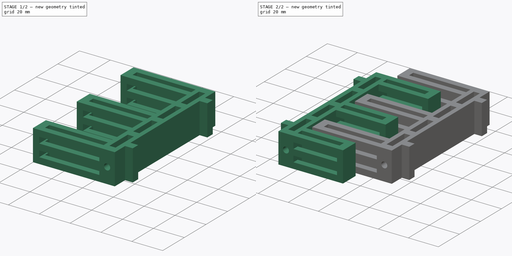
[diagram: build sequence overview — one tinted view per stage of 2, left to right]
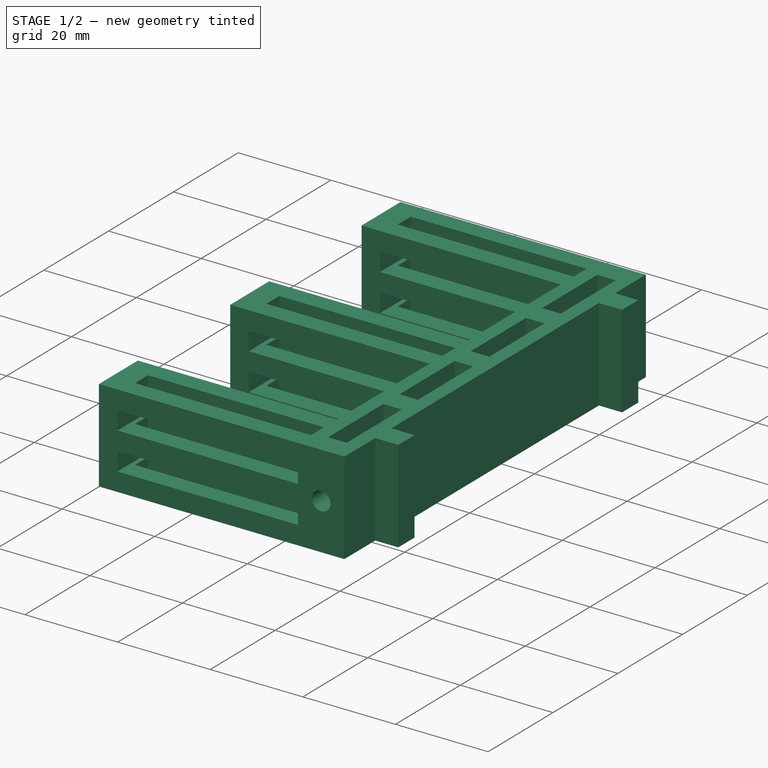
[diagram: stage 1 of 2 — iso view after this stage's code; geometry added in this stage tinted green]
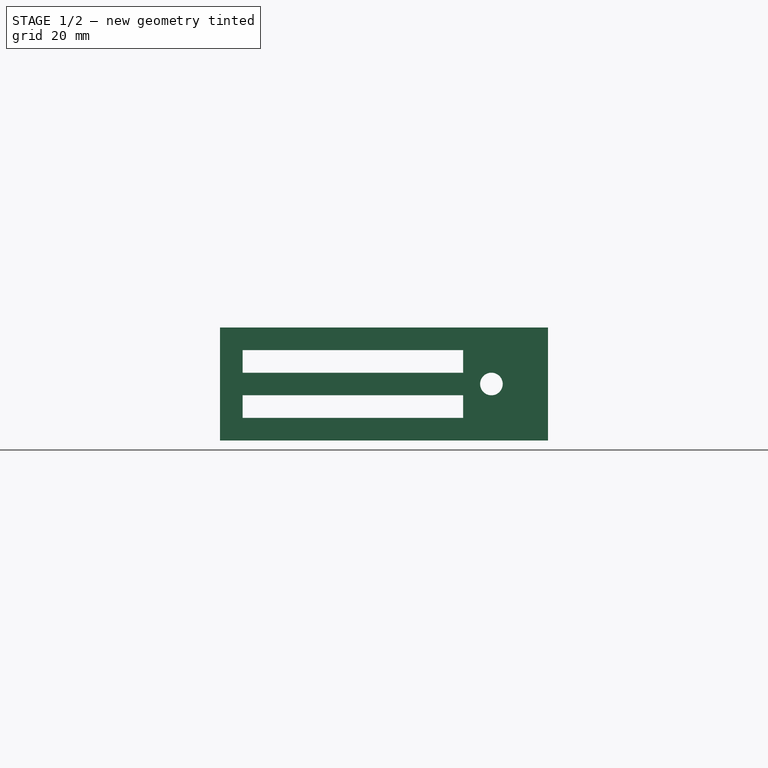
[diagram: stage 1 of 2 — front view after this stage's code; geometry added in this stage tinted green]
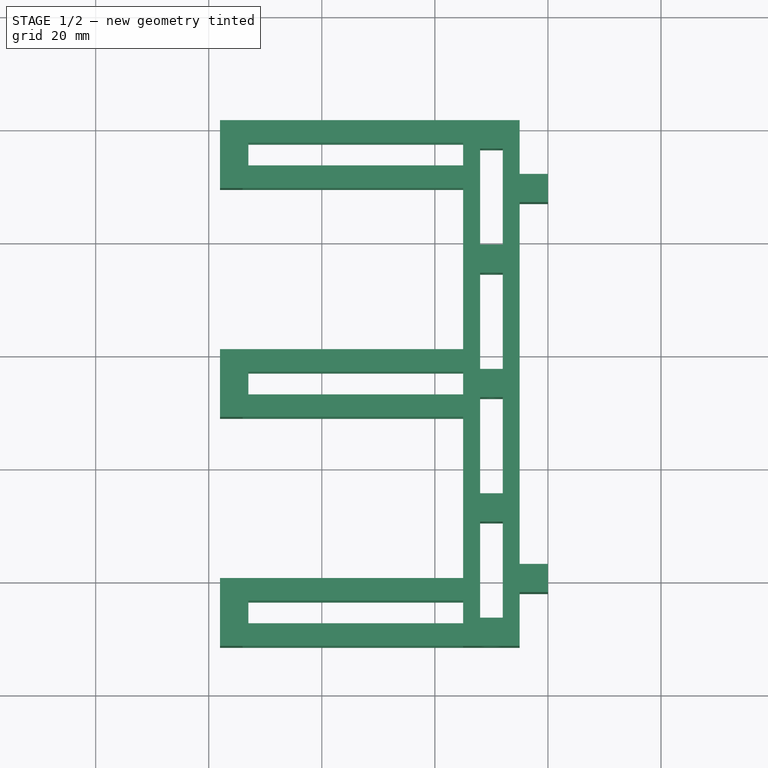
[diagram: stage 1 of 2 — top view after this stage's code; geometry added in this stage tinted green]
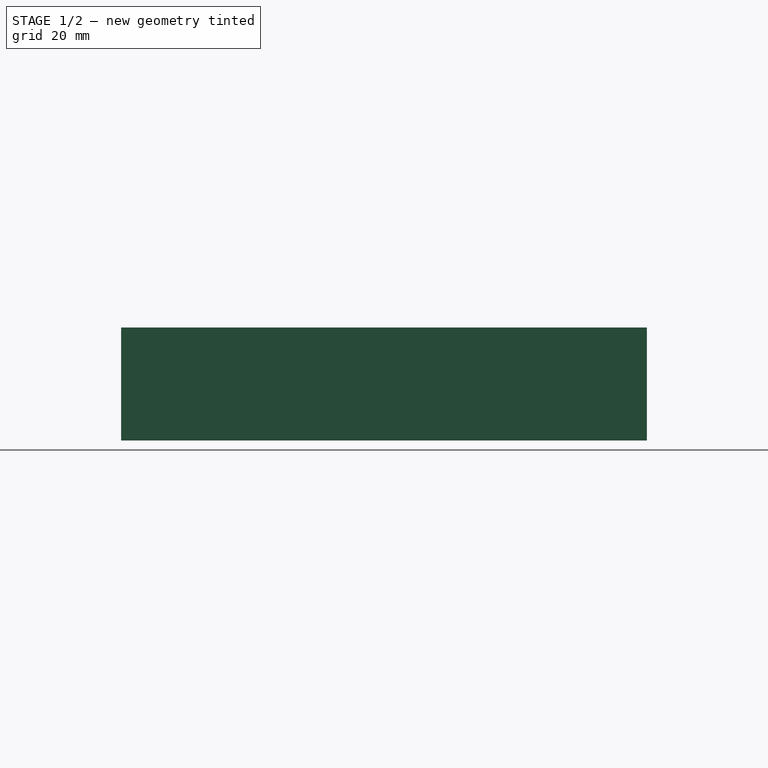
[diagram: stage 1 of 2 — right view after this stage's code; geometry added in this stage tinted green]
FCSTD DOCUMENT  (FreeCAD 0.15R4671 (Git))
Label: soporte_2.0
License: CreativeCommons Attribution-ShareAlike
LicenseURL: http://creativecommons.org/licenses/by-sa/4.0/
objects: Sketcher::SketchObject×4, PartDesign::Pad×2, PartDesign::Pocket×2, App::DocumentObjectGroup×2
note: 12 computed .brp shape members not serialized (recipe doc carries the construction recipe); baked Part::Feature solids carry a one-line shape summary decoded from their .brp

FEATURE [App::DocumentObjectGroup] Group  label="soporte_38mm"
  Group = -> [Pad,Pocket]
FEATURE [Sketcher::SketchObject] Sketch002  label="sketch_soporte001"
  Placement = pos=(45,15,0) rot=(0,0,1;3.14159rad)
  sketch-geometry (55):
    g0: LineSegment StartX=-10 StartY=-46.5 StartZ=0 EndX=43 EndY=-46.5 EndZ=0
    g1: LineSegment StartX=43 StartY=-46.5 StartZ=0 EndX=43 EndY=-34.5 EndZ=0
    g2: LineSegment StartX=43 StartY=-34.5 StartZ=0 EndX=0 EndY=-34.5 EndZ=0
    g3: LineSegment StartX=0 StartY=-34.5 StartZ=0 EndX=0 EndY=-6 EndZ=0
    g4: LineSegment StartX=0 StartY=-6 StartZ=0 EndX=43 EndY=-6 EndZ=0
    g5: LineSegment StartX=43 StartY=-6 StartZ=0 EndX=43 EndY=6 EndZ=0
    g6: LineSegment StartX=43 StartY=6 StartZ=0 EndX=0 EndY=6 EndZ=0
    g7: LineSegment StartX=0 StartY=6 StartZ=0 EndX=0 EndY=34.5 EndZ=0
    g8: LineSegment StartX=0 StartY=34.5 StartZ=0 EndX=43 EndY=34.5 EndZ=0
    g9: LineSegment StartX=43 StartY=34.5 StartZ=0 EndX=43 EndY=46.5 EndZ=0
    g10: LineSegment StartX=43 StartY=46.5 StartZ=0 EndX=-10 EndY=46.5 EndZ=0
    g11: LineSegment StartX=-10 StartY=-46.5 StartZ=0 EndX=-10 EndY=-37 EndZ=0
    g12: LineSegment StartX=-10 StartY=-37 StartZ=0 EndX=-15 EndY=-37 EndZ=0
    g13: LineSegment StartX=-15 StartY=-37 StartZ=0 EndX=-15 EndY=-32 EndZ=0
    g14: LineSegment StartX=-15 StartY=-32 StartZ=0 EndX=-10 EndY=-32 EndZ=0
    g15: LineSegment StartX=-10 StartY=-32 StartZ=0 EndX=-10 EndY=32 EndZ=0
    g16: LineSegment StartX=-10 StartY=32 StartZ=0 EndX=-15 EndY=32 EndZ=0
    g17: LineSegment StartX=-15 StartY=32 StartZ=0 EndX=-15 EndY=37 EndZ=0
    g18: LineSegment StartX=-15 StartY=37 StartZ=0 EndX=-10 EndY=37 EndZ=0
    g19: LineSegment StartX=-10 StartY=37 StartZ=0 EndX=-10 EndY=46.5 EndZ=0
    g20: LineSegment StartX=-7 StartY=41.5 StartZ=0 EndX=-3 EndY=41.5 EndZ=0
    g21: LineSegment StartX=-3 StartY=41.5 StartZ=0 EndX=-3 EndY=24.5 EndZ=0
    g22: LineSegment StartX=-3 StartY=24.5 StartZ=0 EndX=-7 EndY=24.5 EndZ=0
    g23: LineSegment StartX=-7 StartY=24.5 StartZ=0 EndX=-7 EndY=41.5 EndZ=0
    g24: LineSegment StartX=-7 StartY=-24.5 StartZ=0 EndX=-3 EndY=-24.5 EndZ=0
    g25: LineSegment StartX=-3 StartY=-24.5 StartZ=0 EndX=-3 EndY=-41.5 EndZ=0
    g26: LineSegment StartX=-3 StartY=-41.5 StartZ=0 EndX=-7 EndY=-41.5 EndZ=0
    g27: LineSegment StartX=-7 StartY=-41.5 StartZ=0 EndX=-7 EndY=-24.5 EndZ=0
    g28: LineSegment [constr] StartX=-7 StartY=-41.5 StartZ=0 EndX=-7 EndY=-46.5 EndZ=0
    g29: LineSegment StartX=-7 StartY=-2.5 StartZ=0 EndX=-3 EndY=-2.5 EndZ=0
    g30: LineSegment StartX=-3 StartY=-2.5 StartZ=0 EndX=-3 EndY=-19.5 EndZ=0
    g31: LineSegment StartX=-3 StartY=-19.5 StartZ=0 EndX=-7 EndY=-19.5 EndZ=0
    g32: LineSegment StartX=-7 StartY=-19.5 StartZ=0 EndX=-7 EndY=-2.5 EndZ=0
    g33: LineSegment StartX=-7 StartY=19.5 StartZ=0 EndX=-3 EndY=19.5 EndZ=0
    g34: LineSegment StartX=-3 StartY=19.5 StartZ=0 EndX=-3 EndY=2.5 EndZ=0
    g35: LineSegment StartX=-3 StartY=2.5 StartZ=0 EndX=-7 EndY=2.5 EndZ=0
    g36: LineSegment StartX=-7 StartY=2.5 StartZ=0 EndX=-7 EndY=19.5 EndZ=0
    g37: LineSegment [constr] StartX=-7 StartY=-19.5 StartZ=0 EndX=-7 EndY=-24.5 EndZ=0
    g38: LineSegment [constr] StartX=-7 StartY=2.5 StartZ=0 EndX=-7 EndY=-2.5 EndZ=0
    g39: LineSegment [constr] StartX=-7 StartY=-24.5 StartZ=0 EndX=-10 EndY=-24.5 EndZ=0
    g40: LineSegment [constr] StartX=-3 StartY=-24.5 StartZ=0 EndX=0 EndY=-24.5 EndZ=0
    g41: LineSegment StartX=38 StartY=-38.5 StartZ=0 EndX=0 EndY=-38.5 EndZ=0
    g42: LineSegment StartX=0 StartY=-38.5 StartZ=0 EndX=0 EndY=-42.5 EndZ=0
    g43: LineSegment StartX=0 StartY=-42.5 StartZ=0 EndX=38 EndY=-42.5 EndZ=0
    g44: LineSegment StartX=38 StartY=-42.5 StartZ=0 EndX=38 EndY=-38.5 EndZ=0
    g45: LineSegment [constr] StartX=38 StartY=-38.5 StartZ=0 EndX=38 EndY=-34.5 EndZ=0
    g46: LineSegment StartX=0 StartY=2 StartZ=0 EndX=38 EndY=2 EndZ=0
    g47: LineSegment StartX=38 StartY=2 StartZ=0 EndX=38 EndY=-2 EndZ=0
    g48: LineSegment StartX=38 StartY=-2 StartZ=0 EndX=0 EndY=-2 EndZ=0
    g49: LineSegment StartX=0 StartY=-2 StartZ=0 EndX=0 EndY=2 EndZ=0
    g50: LineSegment StartX=0 StartY=42.5 StartZ=0 EndX=38 EndY=42.5 EndZ=0
    g51: LineSegment StartX=38 StartY=42.5 StartZ=0 EndX=38 EndY=38.5 EndZ=0
    g52: LineSegment StartX=38 StartY=38.5 StartZ=0 EndX=0 EndY=38.5 EndZ=0
    g53: LineSegment StartX=0 StartY=38.5 StartZ=0 EndX=0 EndY=42.5 EndZ=0
    g54: LineSegment [constr] StartX=38 StartY=-42.5 StartZ=0 EndX=38 EndY=-46.5 EndZ=0
  constraints (167):
    c: Horizontal(g0)
    c: Coincident(g0,g1)
    c: Vertical(g1)
    c: Coincident(g1,g2)
    c: Horizontal(g2)
    c: Coincident(g2,g3)
    c: PointOnObject(g3,g-2)
    c: Vertical(g3)
    c: Coincident(g3,g4)
    c: Horizontal(g4)
    c: Coincident(g4,g5)
    c: Vertical(g5)
    c: Coincident(g5,g6)
    c: Horizontal(g6)
    c: Coincident(g6,g7)
    c: Vertical(g7)
    c: Coincident(g7,g8)
    c: Horizontal(g8)
    c: Coincident(g8,g9)
    c: Vertical(g9)
    c: Coincident(g9,g10)
    c: Horizontal(g10)
    c: Equal(g4,g6)
    c: Symmetric(g6,g3,g-1)
    c: Symmetric(g7,g2,g-1)
    c: Equal(g8,g6)
    c: Equal(g6,g4)
    c: Equal(g4,g2)
    c: DistanceX(g0) = 53
    c: Equal(g1,g9)
    c: Equal(g10,g0)
    c: DistanceY(g1) = 12
    c: DistanceX(g2,g0) = -10
    c: DistanceY(g10,g0) = -93
    c: Coincident(g0,g11)
    c: Vertical(g11)
    c: Coincident(g11,g12)
    c: Horizontal(g12)
    c: Coincident(g12,g13)
    c: Vertical(g13)
    c: Coincident(g13,g14)
    c: Horizontal(g14)
    c: Coincident(g14,g15)
    c: Vertical(g15)
    c: Coincident(g15,g16)
    c: Horizontal(g16)
    c: Coincident(g16,g17)
    c: Vertical(g17)
    c: Coincident(g17,g18)
    c: Horizontal(g18)
    c: Coincident(g18,g19)
    c: Coincident(g19,g10)
    c: Vertical(g19)
    c: Equal(g18,g16)
    c: Equal(g16,g14)
    c: Equal(g14,g12)
    c: Equal(g13,g17)
    c: Equal(g19,g11)
    c: DistanceY(g13) = 5
    c: DistanceX(g14) = 5
    c: DistanceY(g15) = 64
    c: Coincident(g20,g21)
    c: Coincident(g21,g22)
    c: Coincident(g22,g23)
    c: Coincident(g23,g20)
    c: Horizontal(g20)
    c: Horizontal(g22)
    c: Vertical(g21)
    c: Vertical(g23)
    c: Coincident(g24,g25)
    c: Coincident(g25,g26)
    c: Coincident(g26,g27)
    c: Coincident(g27,g24)
    c: Horizontal(g24)
    c: Horizontal(g26)
    c: Vertical(g25)
    c: Vertical(g27)
    c: Symmetric(g24,g22,g-1)
    c: Symmetric(g25,g20,g-1)
    c: PointOnObject(g28,g0)
    c: Vertical(g28)
    c: Coincident(g29,g30)
    c: Coincident(g30,g31)
    c: Coincident(g31,g32)
    c: Coincident(g32,g29)
    c: Horizontal(g29)
    c: Horizontal(g31)
    c: Vertical(g32)
    c: Coincident(g33,g34)
    c: Coincident(g34,g35)
    c: Coincident(g35,g36)
    c: Coincident(g36,g33)
    c: Horizontal(g33)
    c: Horizontal(g35)
    c: Vertical(g36)
    c: Symmetric(g35,g29,g-1)
    c: Symmetric(g30,g33,g-1)
    c: Coincident(g28,g26)
    c: Coincident(g37,g31)
    c: Coincident(g37,g24)
    c: Vertical(g37)
    c: Coincident(g38,g35)
    c: Coincident(g38,g29)
    c: Equal(g28,g38)
    c: Equal(g38,g37)
    c: Equal(g25,g30)
    c: DistanceX(g26) = -4
    c: Equal(g26,g24)
    c: Equal(g24,g31)
    c: Equal(g31,g29)
    c: Equal(g29,g35)
    c: Equal(g35,g33)
    c: Equal(g33,g22)
    c: Equal(g22,g20)
    c: Coincident(g39,g24)
    c: PointOnObject(g39,g15)
    c: Horizontal(g39)
    c: Coincident(g40,g24)
    c: PointOnObject(g40,g3)
    c: Horizontal(g40)
    c: Equal(g39,g40)
    c: Equal(g5,g1)
    c: Coincident(g41,g42)
    c: Coincident(g42,g43)
    c: Coincident(g43,g44)
    c: Coincident(g44,g41)
    c: Horizontal(g41)
    c: Horizontal(g43)
    c: Vertical(g42)
    c: Vertical(g44)
    c: PointOnObject(g42,g-2)
    c: DistanceY(g44) = 4
    c: DistanceX(g43,g0) = 5
    c: Coincident(g45,g41)
    c: PointOnObject(g45,g2)
    c: Vertical(g45)
    c: Coincident(g46,g47)
    c: Coincident(g47,g48)
    c: Coincident(g48,g49)
    c: Coincident(g49,g46)
    c: Horizontal(g46)
    c: Horizontal(g48)
    c: Vertical(g47)
    c: Vertical(g49)
    c: PointOnObject(g46,g-2)
    c: Symmetric(g46,g48,g-1)
    c: Equal(g47,g44)
    c: Equal(g41,g48)
    c: Coincident(g50,g51)
    c: Coincident(g51,g52)
    c: Coincident(g52,g53)
    c: Coincident(g53,g50)
    c: Horizontal(g50)
    c: Horizontal(g52)
    c: Vertical(g51)
    c: Vertical(g53)
    c: PointOnObject(g50,g-2)
    c: Symmetric(g51,g41,g-1)
    c: Symmetric(g50,g43,g-1)
    c: DistanceY(g24,g30) = 5
    c: Coincident(g40,g25)
    c: Coincident(g32,g38)
    c: Coincident(g44,g45)
    c: Coincident(g54,g43)
    c: PointOnObject(g54,g0)
    c: Vertical(g54)
    c: Equal(g45,g54)
FEATURE [PartDesign::Pad] Pad001  label="soporte001"
  Length = 20
  Length2 = 100
  Placement = pos=(45,15,0) rot=(0,0,1;3.14159rad)
  Sketch = -> Sketch002
  Type = 0
FEATURE [Sketcher::SketchObject] Sketch003  label="sketch_aligerado001"
  ExternalGeometry = -> [Pad001]
  Placement = pos=(45,61.5,0) rot=(0,0.707107,0.707107;3.14159rad)
  Support = -> Pad001 [Face1]
  sketch-geometry (12):
    g0: LineSegment [constr] StartX=-10 StartY=10 StartZ=0 EndX=43 EndY=10 EndZ=0
    g1: LineSegment [constr] StartX=43 StartY=10 StartZ=0 EndX=43 EndY=20 EndZ=0
    g2: LineSegment [constr] StartX=43 StartY=10 StartZ=0 EndX=43 EndY=0 EndZ=0
    g3: LineSegment StartX=0 StartY=16 StartZ=0 EndX=39 EndY=16 EndZ=0
    g4: LineSegment StartX=39 StartY=16 StartZ=0 EndX=39 EndY=12 EndZ=0
    g5: LineSegment StartX=39 StartY=12 StartZ=0 EndX=0 EndY=12 EndZ=0
    g6: LineSegment StartX=0 StartY=12 StartZ=0 EndX=0 EndY=16 EndZ=0
    g7: LineSegment StartX=0 StartY=8 StartZ=0 EndX=39 EndY=8 EndZ=0
    g8: LineSegment StartX=39 StartY=8 StartZ=0 EndX=39 EndY=4 EndZ=0
    g9: LineSegment StartX=39 StartY=4 StartZ=0 EndX=0 EndY=4 EndZ=0
    g10: LineSegment StartX=0 StartY=4 StartZ=0 EndX=0 EndY=8 EndZ=0
    g11: Circle CenterX=-5 CenterY=10 CenterZ=0 NormalX=0 NormalY=0 NormalZ=1 Radius=2
  constraints (33):
    c: PointOnObject(g0,g-4)
    c: Horizontal(g0)
    c: Coincident(g1,g0)
    c: Coincident(g1,g-6)
    c: Vertical(g1)
    c: Coincident(g2,g0)
    c: Coincident(g2,g-7)
    c: Equal(g1,g2)
    c: Coincident(g3,g4)
    c: Coincident(g4,g5)
    c: Coincident(g5,g6)
    c: Coincident(g6,g3)
    c: Horizontal(g3)
    c: Horizontal(g5)
    c: Vertical(g4)
    c: Vertical(g6)
    c: Coincident(g7,g8)
    c: Coincident(g8,g9)
    c: Coincident(g9,g10)
    c: Coincident(g10,g7)
    c: Horizontal(g7)
    c: Horizontal(g9)
    c: Vertical(g8)
    c: Vertical(g10)
    c: Symmetric(g7,g5,g0)
    c: Symmetric(g3,g8,g0)
    c: DistanceX(g8,g2) = 4
    c: DistanceY(g4,g7) = -4
    c: DistanceY(g8,g2) = -4
    c: PointOnObject(g11,g0)
    c: Radius(g11) = 2
    c: DistanceX(g11,g0) = -5
    c: PointOnObject(g9,g-3)
FEATURE [PartDesign::Pocket] Pocket001  label="soporte_aligerado001"
  Length = 5
  Placement = pos=(45,15,0) rot=(0,0,1;3.14159rad)
  Sketch = -> Sketch003
  Type = 1
FEATURE [App::DocumentObjectGroup] Group001  label="soporte_40mm"
  Group = -> [Pad001,Pocket001]
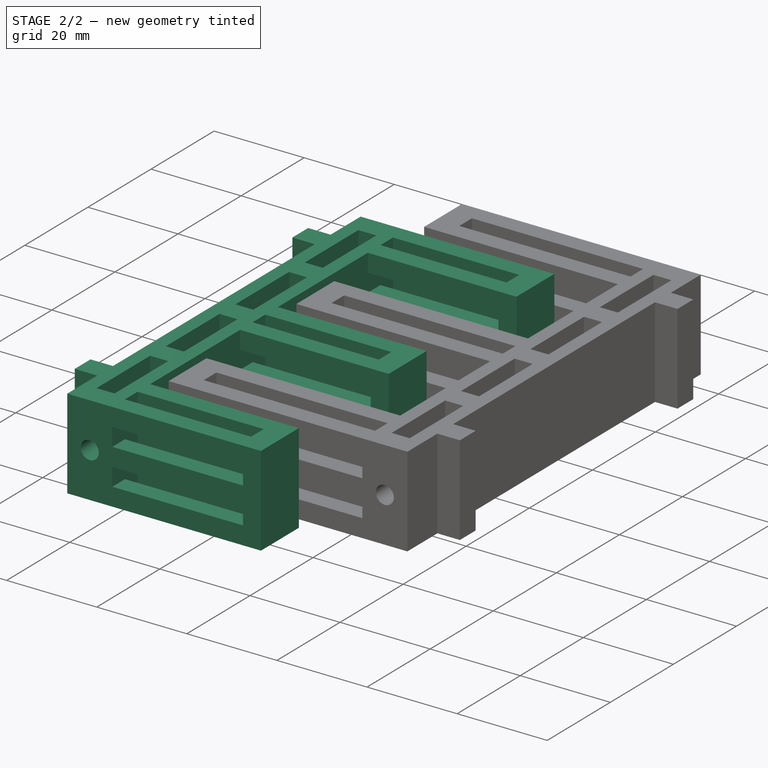
[diagram: stage 2 of 2 — iso view after this stage's code; geometry added in this stage tinted green]
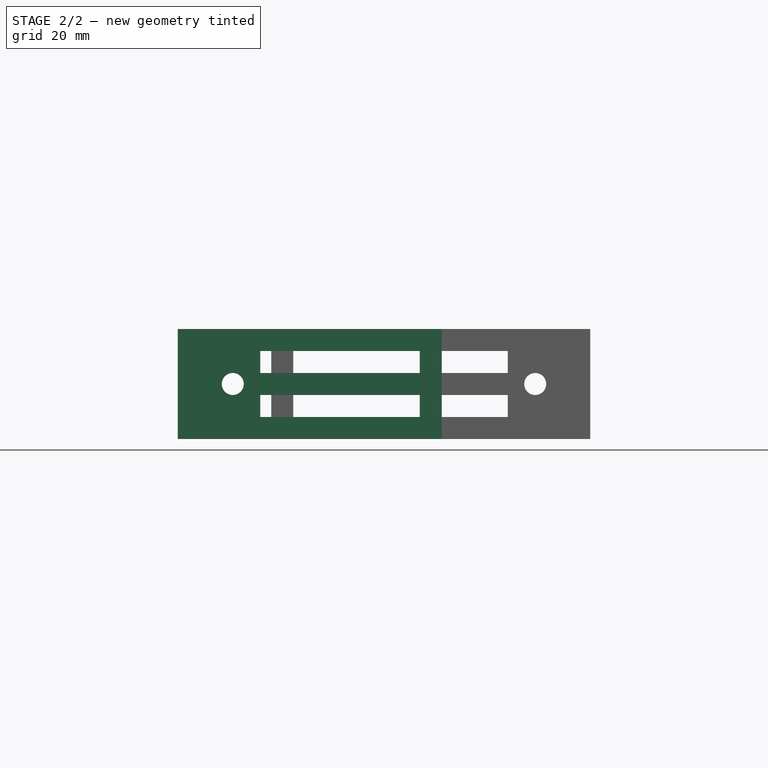
[diagram: stage 2 of 2 — front view after this stage's code; geometry added in this stage tinted green]
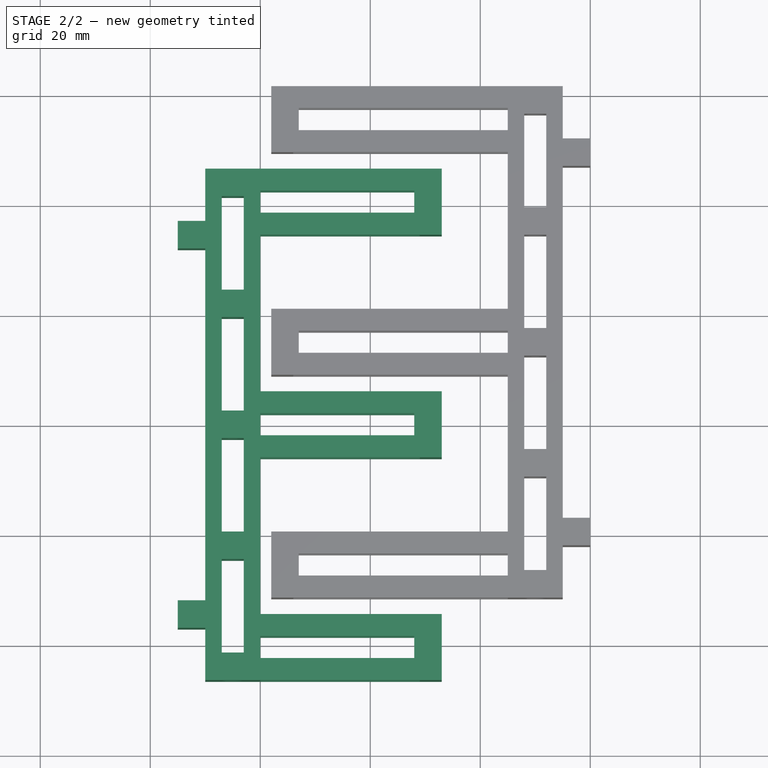
[diagram: stage 2 of 2 — top view after this stage's code; geometry added in this stage tinted green]
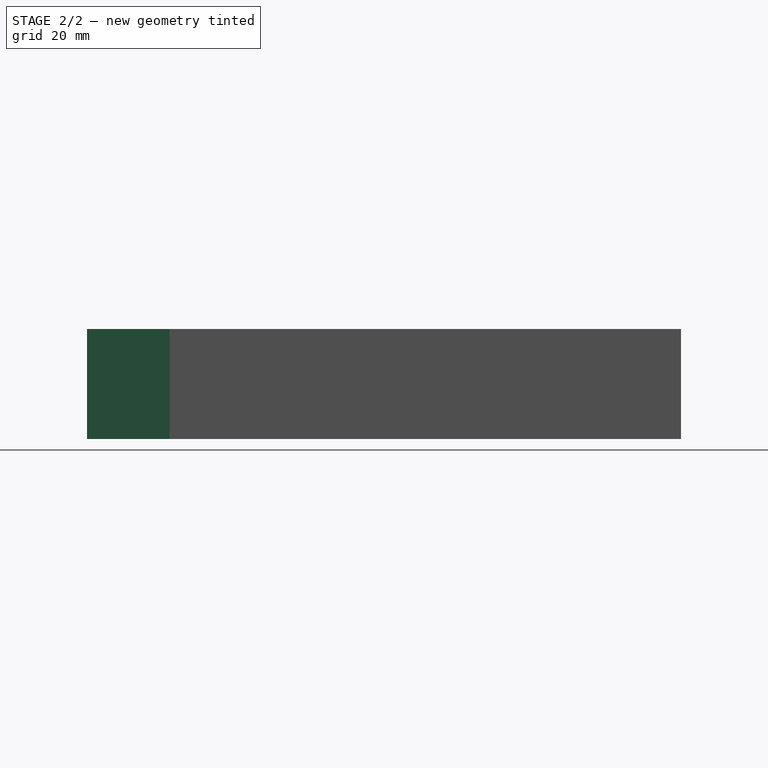
[diagram: stage 2 of 2 — right view after this stage's code; geometry added in this stage tinted green]
FEATURE [Sketcher::SketchObject] Sketch  label="sketch_soporte"
  sketch-geometry (55):
    g0: LineSegment StartX=-10 StartY=-46.5 StartZ=0 EndX=33 EndY=-46.5 EndZ=0
    g1: LineSegment StartX=33 StartY=-46.5 StartZ=0 EndX=33 EndY=-34.5 EndZ=0
    g2: LineSegment StartX=33 StartY=-34.5 StartZ=0 EndX=0 EndY=-34.5 EndZ=0
    g3: LineSegment StartX=0 StartY=-34.5 StartZ=0 EndX=0 EndY=-6 EndZ=0
    g4: LineSegment StartX=0 StartY=-6 StartZ=0 EndX=33 EndY=-6 EndZ=0
    g5: LineSegment StartX=33 StartY=-6 StartZ=0 EndX=33 EndY=6 EndZ=0
    g6: LineSegment StartX=33 StartY=6 StartZ=0 EndX=0 EndY=6 EndZ=0
    g7: LineSegment StartX=0 StartY=6 StartZ=0 EndX=0 EndY=34.5 EndZ=0
    g8: LineSegment StartX=0 StartY=34.5 StartZ=0 EndX=33 EndY=34.5 EndZ=0
    g9: LineSegment StartX=33 StartY=34.5 StartZ=0 EndX=33 EndY=46.5 EndZ=0
    g10: LineSegment StartX=33 StartY=46.5 StartZ=0 EndX=-10 EndY=46.5 EndZ=0
    g11: LineSegment StartX=-10 StartY=-46.5 StartZ=0 EndX=-10 EndY=-37 EndZ=0
    g12: LineSegment StartX=-10 StartY=-37 StartZ=0 EndX=-15 EndY=-37 EndZ=0
    g13: LineSegment StartX=-15 StartY=-37 StartZ=0 EndX=-15 EndY=-32 EndZ=0
    g14: LineSegment StartX=-15 StartY=-32 StartZ=0 EndX=-10 EndY=-32 EndZ=0
    g15: LineSegment StartX=-10 StartY=-32 StartZ=0 EndX=-10 EndY=32 EndZ=0
    g16: LineSegment StartX=-10 StartY=32 StartZ=0 EndX=-15 EndY=32 EndZ=0
    g17: LineSegment StartX=-15 StartY=32 StartZ=0 EndX=-15 EndY=37 EndZ=0
    g18: LineSegment StartX=-15 StartY=37 StartZ=0 EndX=-10 EndY=37 EndZ=0
    g19: LineSegment StartX=-10 StartY=37 StartZ=0 EndX=-10 EndY=46.5 EndZ=0
    g20: LineSegment StartX=-7 StartY=41.5 StartZ=0 EndX=-3 EndY=41.5 EndZ=0
    g21: LineSegment StartX=-3 StartY=41.5 StartZ=0 EndX=-3 EndY=24.5 EndZ=0
    g22: LineSegment StartX=-3 StartY=24.5 StartZ=0 EndX=-7 EndY=24.5 EndZ=0
    g23: LineSegment StartX=-7 StartY=24.5 StartZ=0 EndX=-7 EndY=41.5 EndZ=0
    g24: LineSegment StartX=-7 StartY=-24.5 StartZ=0 EndX=-3 EndY=-24.5 EndZ=0
    g25: LineSegment StartX=-3 StartY=-24.5 StartZ=0 EndX=-3 EndY=-41.5 EndZ=0
    g26: LineSegment StartX=-3 StartY=-41.5 StartZ=0 EndX=-7 EndY=-41.5 EndZ=0
    g27: LineSegment StartX=-7 StartY=-41.5 StartZ=0 EndX=-7 EndY=-24.5 EndZ=0
    g28: LineSegment [constr] StartX=-7 StartY=-41.5 StartZ=0 EndX=-7 EndY=-46.5 EndZ=0
    g29: LineSegment StartX=-7 StartY=-2.5 StartZ=0 EndX=-3 EndY=-2.5 EndZ=0
    g30: LineSegment StartX=-3 StartY=-2.5 StartZ=0 EndX=-3 EndY=-19.5 EndZ=0
    g31: LineSegment StartX=-3 StartY=-19.5 StartZ=0 EndX=-7 EndY=-19.5 EndZ=0
    g32: LineSegment StartX=-7 StartY=-19.5 StartZ=0 EndX=-7 EndY=-2.5 EndZ=0
    g33: LineSegment StartX=-7 StartY=19.5 StartZ=0 EndX=-3 EndY=19.5 EndZ=0
    g34: LineSegment StartX=-3 StartY=19.5 StartZ=0 EndX=-3 EndY=2.5 EndZ=0
    g35: LineSegment StartX=-3 StartY=2.5 StartZ=0 EndX=-7 EndY=2.5 EndZ=0
    g36: LineSegment StartX=-7 StartY=2.5 StartZ=0 EndX=-7 EndY=19.5 EndZ=0
    g37: LineSegment [constr] StartX=-7 StartY=-19.5 StartZ=0 EndX=-7 EndY=-24.5 EndZ=0
    g38: LineSegment [constr] StartX=-7 StartY=2.5 StartZ=0 EndX=-7 EndY=-2.5 EndZ=0
    g39: LineSegment [constr] StartX=-7 StartY=-24.5 StartZ=0 EndX=-10 EndY=-24.5 EndZ=0
    g40: LineSegment [constr] StartX=-3 StartY=-24.5 StartZ=0 EndX=0 EndY=-24.5 EndZ=0
    g41: LineSegment StartX=28 StartY=-38.5 StartZ=0 EndX=0 EndY=-38.5 EndZ=0
    g42: LineSegment StartX=0 StartY=-38.5 StartZ=0 EndX=0 EndY=-42.5 EndZ=0
    g43: LineSegment StartX=0 StartY=-42.5 StartZ=0 EndX=28 EndY=-42.5 EndZ=0
    g44: LineSegment StartX=28 StartY=-42.5 StartZ=0 EndX=28 EndY=-38.5 EndZ=0
    g45: LineSegment [constr] StartX=28 StartY=-38.5 StartZ=0 EndX=28 EndY=-34.5 EndZ=0
    g46: LineSegment StartX=0 StartY=2 StartZ=0 EndX=28 EndY=2 EndZ=0
    g47: LineSegment StartX=28 StartY=2 StartZ=0 EndX=28 EndY=-2 EndZ=0
    g48: LineSegment StartX=28 StartY=-2 StartZ=0 EndX=0 EndY=-2 EndZ=0
    g49: LineSegment StartX=0 StartY=-2 StartZ=0 EndX=0 EndY=2 EndZ=0
    g50: LineSegment StartX=0 StartY=42.5 StartZ=0 EndX=28 EndY=42.5 EndZ=0
    g51: LineSegment StartX=28 StartY=42.5 StartZ=0 EndX=28 EndY=38.5 EndZ=0
    g52: LineSegment StartX=28 StartY=38.5 StartZ=0 EndX=0 EndY=38.5 EndZ=0
    g53: LineSegment StartX=0 StartY=38.5 StartZ=0 EndX=0 EndY=42.5 EndZ=0
    g54: LineSegment [constr] StartX=28 StartY=-42.5 StartZ=0 EndX=28 EndY=-46.5 EndZ=0
  constraints (167):
    c: Horizontal(g0)
    c: Coincident(g0,g1)
    c: Vertical(g1)
    c: Coincident(g1,g2)
    c: Horizontal(g2)
    c: Coincident(g2,g3)
    c: PointOnObject(g3,g-2)
    c: Vertical(g3)
    c: Coincident(g3,g4)
    c: Horizontal(g4)
    c: Coincident(g4,g5)
    c: Vertical(g5)
    c: Coincident(g5,g6)
    c: Horizontal(g6)
    c: Coincident(g6,g7)
    c: Vertical(g7)
    c: Coincident(g7,g8)
    c: Horizontal(g8)
    c: Coincident(g8,g9)
    c: Vertical(g9)
    c: Coincident(g9,g10)
    c: Horizontal(g10)
    c: Equal(g4,g6)
    c: Symmetric(g6,g3,g-1)
    c: Symmetric(g7,g2,g-1)
    c: Equal(g8,g6)
    c: Equal(g6,g4)
    c: Equal(g4,g2)
    c: DistanceX(g0) = 43
    c: Equal(g1,g9)
    c: Equal(g10,g0)
    c: DistanceY(g1) = 12
    c: DistanceX(g2,g0) = -10
    c: DistanceY(g10,g0) = -93
    c: Coincident(g0,g11)
    c: Vertical(g11)
    c: Coincident(g11,g12)
    c: Horizontal(g12)
    c: Coincident(g12,g13)
    c: Vertical(g13)
    c: Coincident(g13,g14)
    c: Horizontal(g14)
    c: Coincident(g14,g15)
    c: Vertical(g15)
    c: Coincident(g15,g16)
    c: Horizontal(g16)
    c: Coincident(g16,g17)
    c: Vertical(g17)
    c: Coincident(g17,g18)
    c: Horizontal(g18)
    c: Coincident(g18,g19)
    c: Coincident(g19,g10)
    c: Vertical(g19)
    c: Equal(g18,g16)
    c: Equal(g16,g14)
    c: Equal(g14,g12)
    c: Equal(g13,g17)
    c: Equal(g19,g11)
    c: DistanceY(g13) = 5
    c: DistanceX(g14) = 5
    c: DistanceY(g15) = 64
    c: Coincident(g20,g21)
    c: Coincident(g21,g22)
    c: Coincident(g22,g23)
    c: Coincident(g23,g20)
    c: Horizontal(g20)
    c: Horizontal(g22)
    c: Vertical(g21)
    c: Vertical(g23)
    c: Coincident(g24,g25)
    c: Coincident(g25,g26)
    c: Coincident(g26,g27)
    c: Coincident(g27,g24)
    c: Horizontal(g24)
    c: Horizontal(g26)
    c: Vertical(g25)
    c: Vertical(g27)
    c: Symmetric(g24,g22,g-1)
    c: Symmetric(g25,g20,g-1)
    c: PointOnObject(g28,g0)
    c: Vertical(g28)
    c: Coincident(g29,g30)
    c: Coincident(g30,g31)
    c: Coincident(g31,g32)
    c: Coincident(g32,g29)
    c: Horizontal(g29)
    c: Horizontal(g31)
    c: Vertical(g32)
    c: Coincident(g33,g34)
    c: Coincident(g34,g35)
    c: Coincident(g35,g36)
    c: Coincident(g36,g33)
    c: Horizontal(g33)
    c: Horizontal(g35)
    c: Vertical(g36)
    c: Symmetric(g35,g29,g-1)
    c: Symmetric(g30,g33,g-1)
    c: Coincident(g28,g26)
    c: Coincident(g37,g31)
    c: Coincident(g37,g24)
    c: Vertical(g37)
    c: Coincident(g38,g35)
    c: Coincident(g38,g29)
    c: Equal(g28,g38)
    c: Equal(g38,g37)
    c: Equal(g25,g30)
    c: DistanceX(g26) = -4
    c: Equal(g26,g24)
    c: Equal(g24,g31)
    c: Equal(g31,g29)
    c: Equal(g29,g35)
    c: Equal(g35,g33)
    c: Equal(g33,g22)
    c: Equal(g22,g20)
    c: Coincident(g39,g24)
    c: PointOnObject(g39,g15)
    c: Horizontal(g39)
    c: Coincident(g40,g24)
    c: PointOnObject(g40,g3)
    c: Horizontal(g40)
    c: Equal(g39,g40)
    c: Equal(g5,g1)
    c: Coincident(g41,g42)
    c: Coincident(g42,g43)
    c: Coincident(g43,g44)
    c: Coincident(g44,g41)
    c: Horizontal(g41)
    c: Horizontal(g43)
    c: Vertical(g42)
    c: Vertical(g44)
    c: PointOnObject(g42,g-2)
    c: DistanceY(g44) = 4
    c: DistanceX(g43,g0) = 5
    c: Coincident(g45,g41)
    c: PointOnObject(g45,g2)
    c: Vertical(g45)
    c: Coincident(g46,g47)
    c: Coincident(g47,g48)
    c: Coincident(g48,g49)
    c: Coincident(g49,g46)
    c: Horizontal(g46)
    c: Horizontal(g48)
    c: Vertical(g47)
    c: Vertical(g49)
    c: PointOnObject(g46,g-2)
    c: Symmetric(g46,g48,g-1)
    c: Equal(g47,g44)
    c: Equal(g41,g48)
    c: Coincident(g50,g51)
    c: Coincident(g51,g52)
    c: Coincident(g52,g53)
    c: Coincident(g53,g50)
    c: Horizontal(g50)
    c: Horizontal(g52)
    c: Vertical(g51)
    c: Vertical(g53)
    c: PointOnObject(g50,g-2)
    c: Symmetric(g51,g41,g-1)
    c: Symmetric(g50,g43,g-1)
    c: DistanceY(g24,g30) = 5
    c: Coincident(g40,g25)
    c: Coincident(g32,g38)
    c: Coincident(g44,g45)
    c: Coincident(g54,g43)
    c: PointOnObject(g54,g0)
    c: Vertical(g54)
    c: Equal(g45,g54)
FEATURE [PartDesign::Pad] Pad  label="soporte"
  Length = 20
  Length2 = 100
  Sketch = -> Sketch
  Type = 0
FEATURE [Sketcher::SketchObject] Sketch001  label="sketch_aligerado"
  ExternalGeometry = -> [Pad]
  Placement = pos=(0,-46.5,0) rot=(1,0,0;1.5708rad)
  Support = -> Pad [Face1]
  sketch-geometry (12):
    g0: LineSegment [constr] StartX=-10 StartY=10 StartZ=0 EndX=33 EndY=10 EndZ=0
    g1: LineSegment [constr] StartX=33 StartY=10 StartZ=0 EndX=33 EndY=20 EndZ=0
    g2: LineSegment [constr] StartX=33 StartY=10 StartZ=0 EndX=33 EndY=0 EndZ=0
    g3: LineSegment StartX=0 StartY=16 StartZ=0 EndX=29 EndY=16 EndZ=0
    g4: LineSegment StartX=29 StartY=16 StartZ=0 EndX=29 EndY=12 EndZ=0
    g5: LineSegment StartX=29 StartY=12 StartZ=0 EndX=0 EndY=12 EndZ=0
    g6: LineSegment StartX=0 StartY=12 StartZ=0 EndX=0 EndY=16 EndZ=0
    g7: LineSegment StartX=0 StartY=8 StartZ=0 EndX=29 EndY=8 EndZ=0
    g8: LineSegment StartX=29 StartY=8 StartZ=0 EndX=29 EndY=4 EndZ=0
    g9: LineSegment StartX=29 StartY=4 StartZ=0 EndX=0 EndY=4 EndZ=0
    g10: LineSegment StartX=0 StartY=4 StartZ=0 EndX=0 EndY=8 EndZ=0
    g11: Circle CenterX=-5 CenterY=10 CenterZ=0 NormalX=0 NormalY=0 NormalZ=1 Radius=2
  constraints (33):
    c: PointOnObject(g0,g-4)
    c: Horizontal(g0)
    c: Coincident(g1,g0)
    c: Coincident(g1,g-6)
    c: Vertical(g1)
    c: Coincident(g2,g0)
    c: Coincident(g2,g-7)
    c: Equal(g1,g2)
    c: Coincident(g3,g4)
    c: Coincident(g4,g5)
    c: Coincident(g5,g6)
    c: Coincident(g6,g3)
    c: Horizontal(g3)
    c: Horizontal(g5)
    c: Vertical(g4)
    c: Vertical(g6)
    c: Coincident(g7,g8)
    c: Coincident(g8,g9)
    c: Coincident(g9,g10)
    c: Coincident(g10,g7)
    c: Horizontal(g7)
    c: Horizontal(g9)
    c: Vertical(g8)
    c: Vertical(g10)
    c: Symmetric(g7,g5,g0)
    c: Symmetric(g3,g8,g0)
    c: DistanceX(g8,g2) = 4
    c: DistanceY(g4,g7) = -4
    c: DistanceY(g8,g2) = -4
    c: PointOnObject(g11,g0)
    c: Radius(g11) = 2
    c: DistanceX(g11,g0) = -5
    c: PointOnObject(g9,g-3)
FEATURE [PartDesign::Pocket] Pocket  label="soporte_aligerado"
  Length = 5
  Sketch = -> Sketch001
  Type = 1
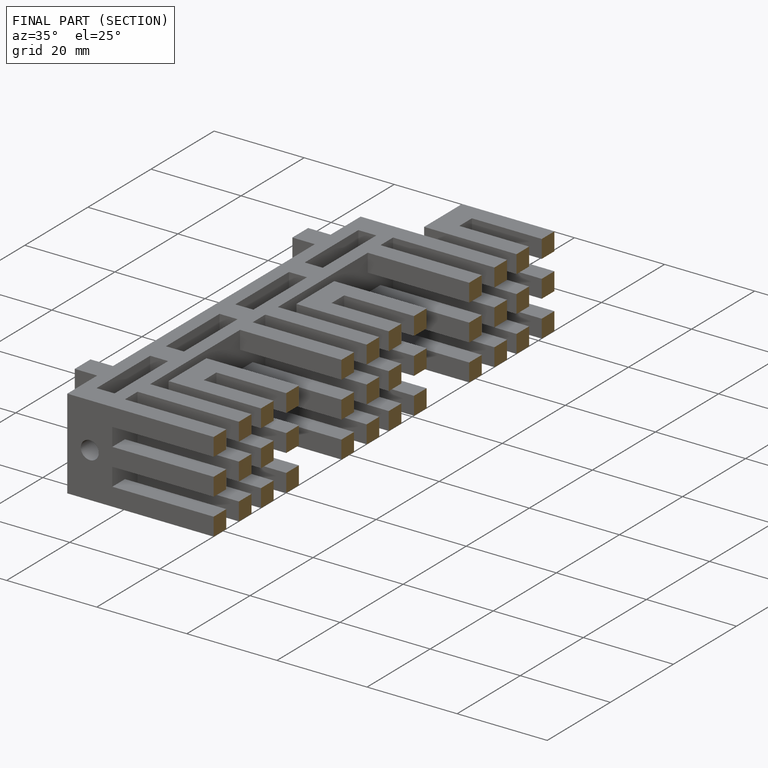
[diagram: finished part — half-section view (interior)]
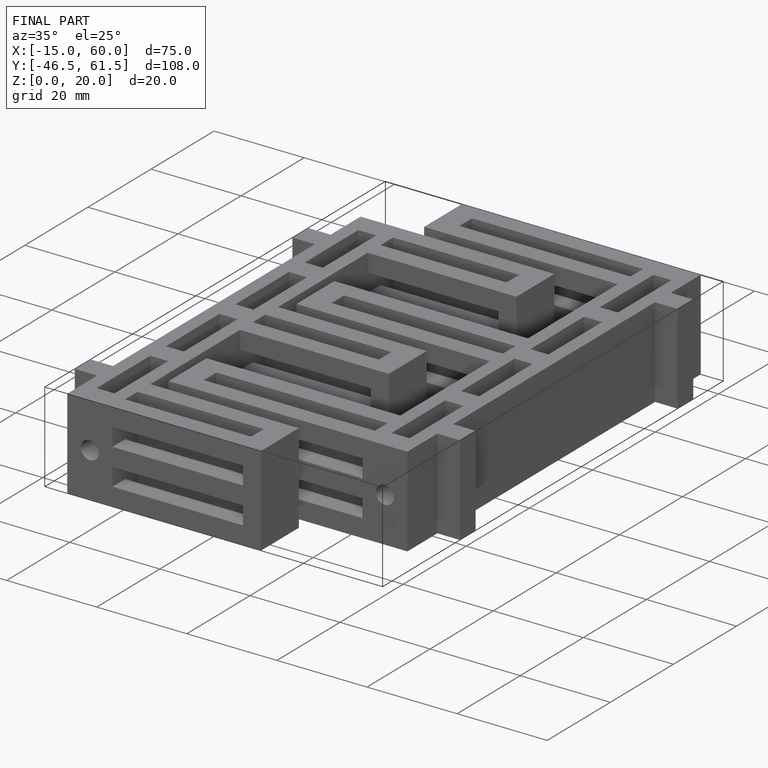
[diagram: finished part — iso view with bounding-box wireframe]
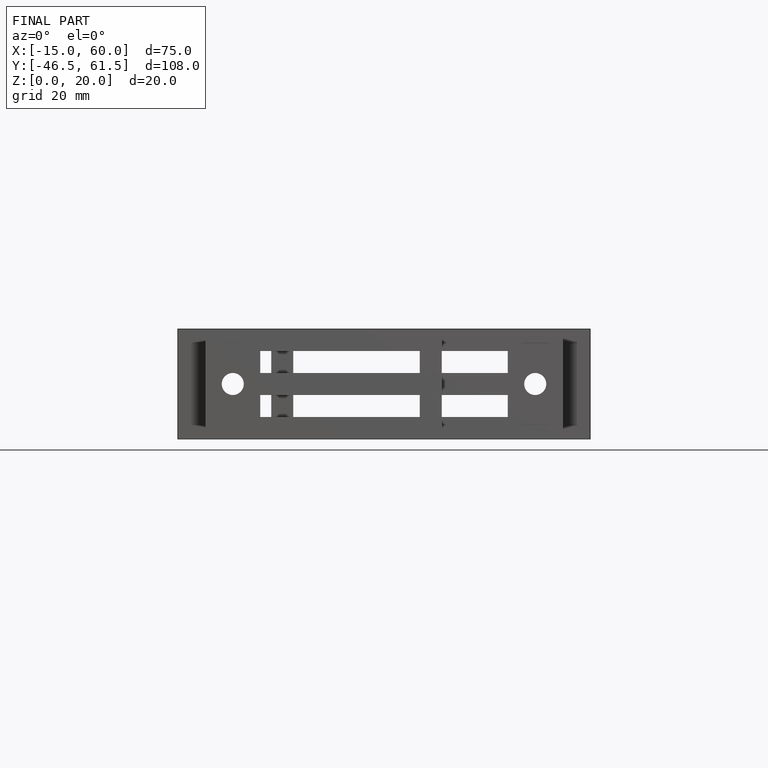
[diagram: finished part — front view with bounding-box wireframe]
